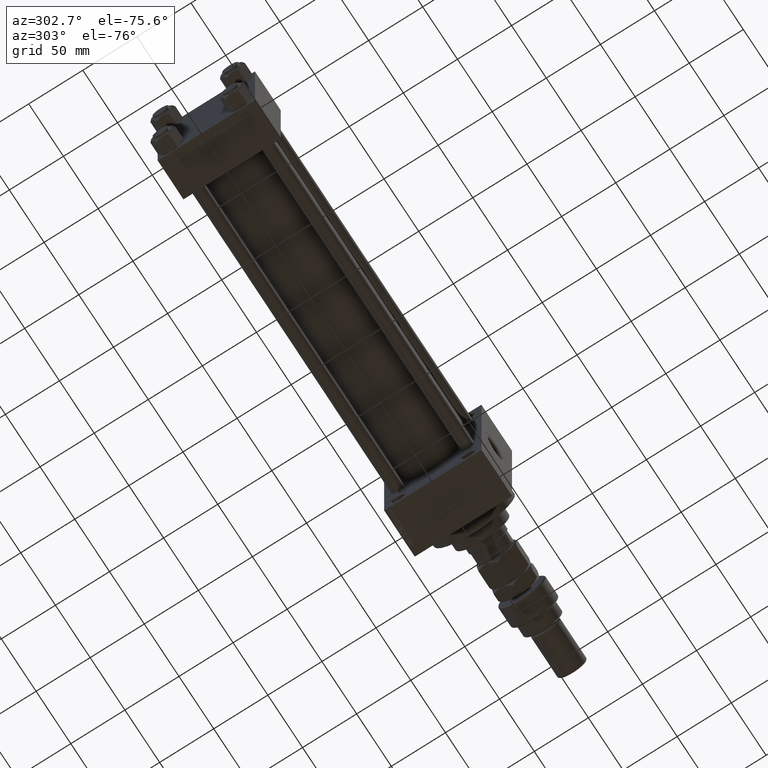
[diagram: clean part render]
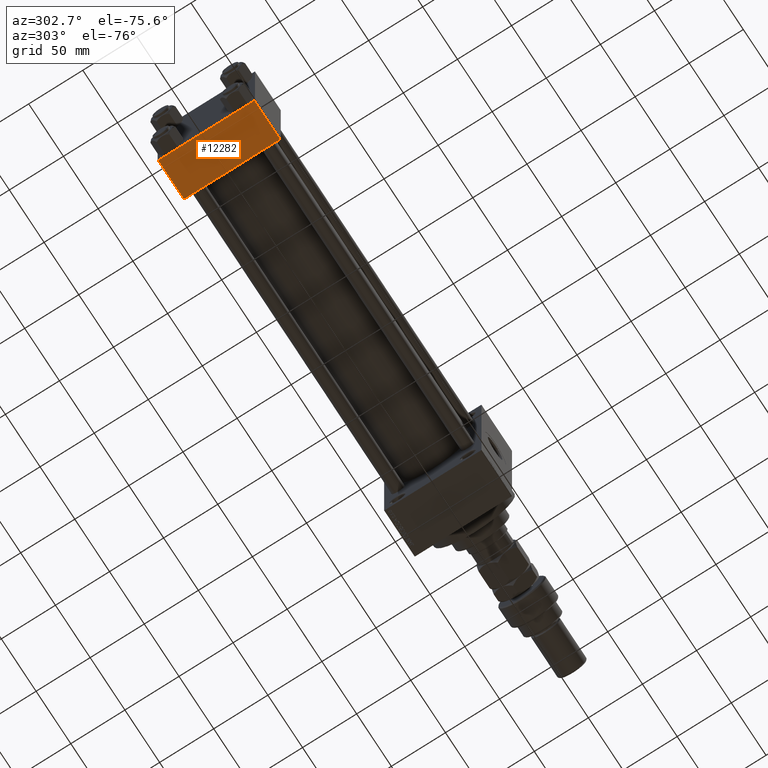
[diagram: same view with one face highlighted and labeled with its STEP entity id]
A machine part, auxiliary view. The second image highlights one B-rep face of the part: STEP entity #12282.
In plain terms, the highlighted planar face has unit normal (0, 0, -1).
Its self-contained STEP definition (entity closure, byte-faithful):
#326 = EDGE_CURVE ( 'NONE', #32053, #45471, #44080, .T. ) ;
#1591 = CARTESIAN_POINT ( 'NONE',  ( 37.00000000000000000, -44.49999999999995737, -45.00000000000000000 ) ) ;
#2073 = CARTESIAN_POINT ( 'NONE',  ( 37.00000000000000000, 44.99999999999998579, -44.99999999999998579 ) ) ;
#2588 = VECTOR ( 'NONE', #45508, 1000.000000000000000 ) ;
#2698 = LINE ( 'NONE', #49240, #13544 ) ;
#5224 = ORIENTED_EDGE ( 'NONE', *, *, #18219, .F. ) ;
#5401 = CARTESIAN_POINT ( 'NONE',  ( 37.00000000000000000, 44.99999999999998579, -44.99999999999998579 ) ) ;
#5822 = EDGE_LOOP ( 'NONE', ( #5224, #41966, #23444, #24933 ) ) ;
#7723 = CARTESIAN_POINT ( 'NONE',  ( 37.00000000000000000, 44.49999999999998579, -44.99999999999998579 ) ) ;
#10453 = CARTESIAN_POINT ( 'NONE',  ( 0.000000000000000000, -44.49999999999995737, -45.00000000000000000 ) ) ;
#12282 = ADVANCED_FACE ( 'NONE', ( #44555 ), #36922, .T. ) ;
#12395 = VERTEX_POINT ( 'NONE', #34118 ) ;
#13544 = VECTOR ( 'NONE', #26124, 1000.000000000000000 ) ;
#15496 = DIRECTION ( 'NONE',  ( -1.000000000000000000, 0.000000000000000000, 0.000000000000000000 ) ) ;
#17766 = VECTOR ( 'NONE', #15496, 1000.000000000000000 ) ;
#18219 = EDGE_CURVE ( 'NONE', #12395, #28882, #2698, .T. ) ;
#23444 = ORIENTED_EDGE ( 'NONE', *, *, #326, .T. ) ;
#24933 = ORIENTED_EDGE ( 'NONE', *, *, #30122, .T. ) ;
#25140 = EDGE_CURVE ( 'NONE', #12395, #32053, #28665, .T. ) ;
#26124 = DIRECTION ( 'NONE',  ( 0.000000000000000000, -1.000000000000000000, -1.541976423090495633E-16 ) ) ;
#26949 = LINE ( 'NONE', #49819, #17766 ) ;
#28665 = LINE ( 'NONE', #44165, #39594 ) ;
#28882 = VERTEX_POINT ( 'NONE', #10453 ) ;
#30122 = EDGE_CURVE ( 'NONE', #45471, #28882, #26949, .T. ) ;
#32053 = VERTEX_POINT ( 'NONE', #7723 ) ;
#33380 = AXIS2_PLACEMENT_3D ( 'NONE', #2073, #48618, #40985 ) ;
#34118 = CARTESIAN_POINT ( 'NONE',  ( 0.000000000000000000, 44.49999999999998579, -44.99999999999998579 ) ) ;
#35778 = DIRECTION ( 'NONE',  ( 1.000000000000000000, 0.000000000000000000, 0.000000000000000000 ) ) ;
#36922 = PLANE ( 'NONE',  #33380 ) ;
#39594 = VECTOR ( 'NONE', #35778, 1000.000000000000000 ) ;
#40985 = DIRECTION ( 'NONE',  ( 0.000000000000000000, 1.000000000000000000, 1.541976423090495880E-16 ) ) ;
#41966 = ORIENTED_EDGE ( 'NONE', *, *, #25140, .T. ) ;
#44080 = LINE ( 'NONE', #5401, #2588 ) ;
#44165 = CARTESIAN_POINT ( 'NONE',  ( 37.00000000000000000, 44.49999999999998579, -44.99999999999998579 ) ) ;
#44555 = FACE_OUTER_BOUND ( 'NONE', #5822, .T. ) ;
#45471 = VERTEX_POINT ( 'NONE', #1591 ) ;
#45508 = DIRECTION ( 'NONE',  ( 0.000000000000000000, -1.000000000000000000, -1.541976423090495633E-16 ) ) ;
#48618 = DIRECTION ( 'NONE',  ( 0.000000000000000000, 1.541976423090495880E-16, -1.000000000000000000 ) ) ;
#49240 = CARTESIAN_POINT ( 'NONE',  ( 0.000000000000000000, 44.99999999999998579, -44.99999999999998579 ) ) ;
#49819 = CARTESIAN_POINT ( 'NONE',  ( 0.000000000000000000, -44.49999999999998579, -45.00000000000000000 ) ) ;